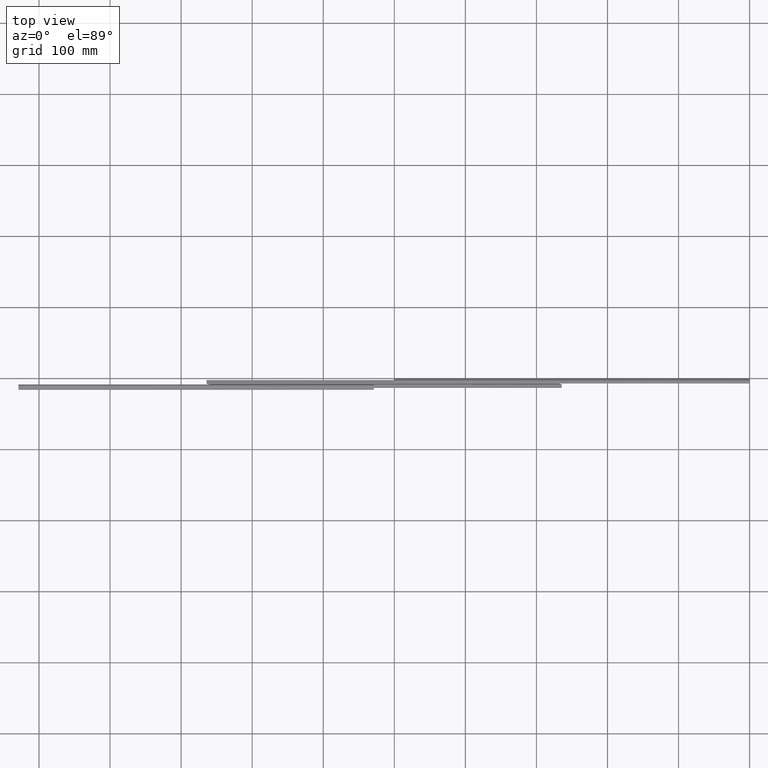
[diagram: clean part render]
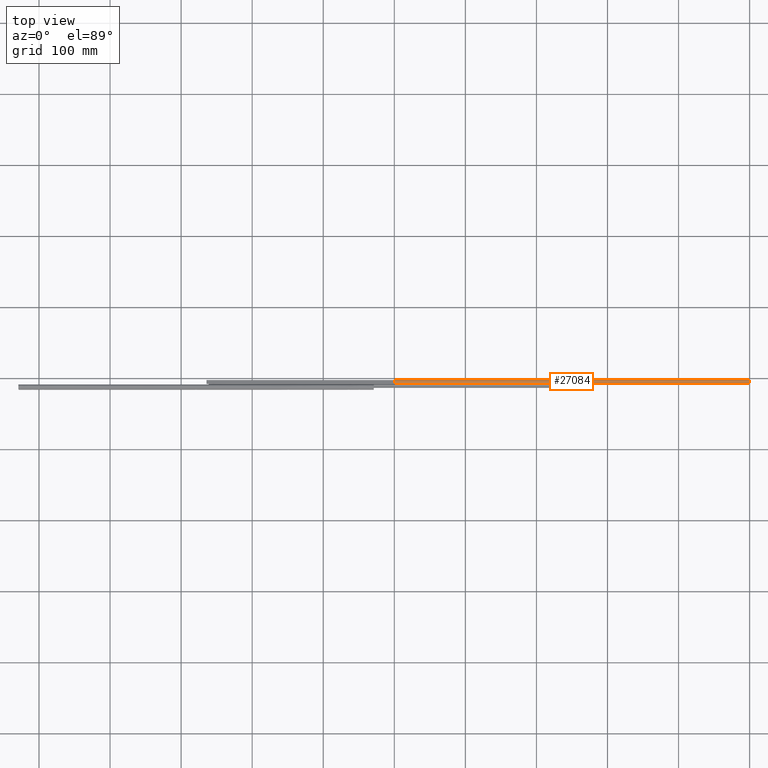
[diagram: same view with one face highlighted and labeled with its STEP entity id]
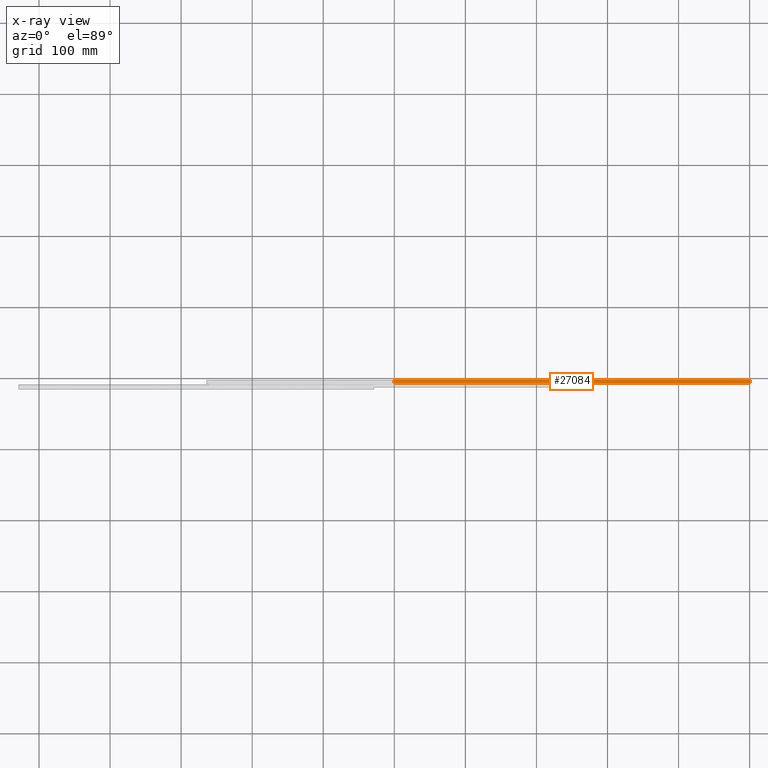
[diagram: x-ray of the same camera — body ghosted, the highlighted face saturated]
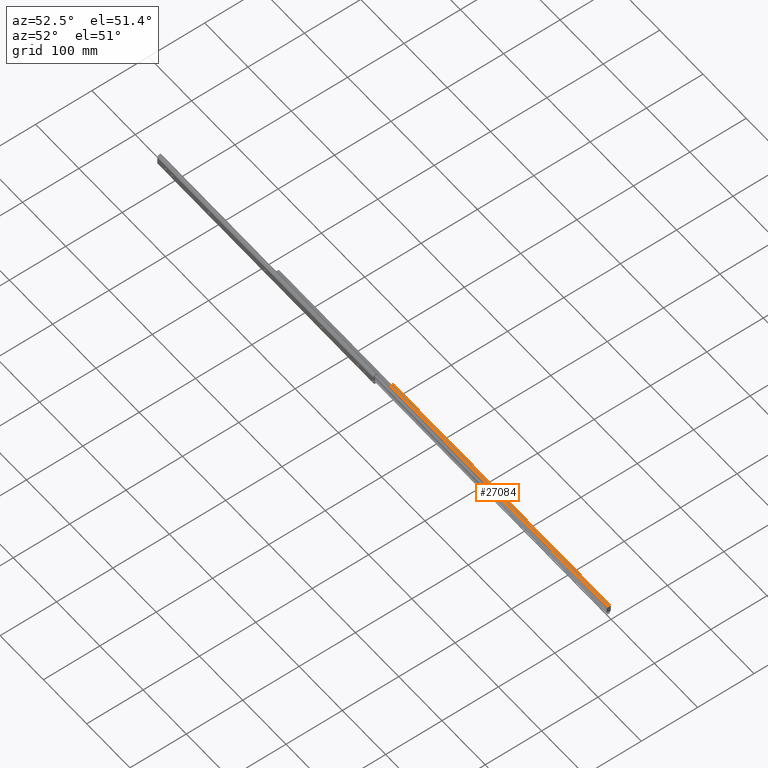
[diagram: same view with one face highlighted and labeled with its STEP entity id]
A machine part, top view. The second image highlights one B-rep face of the part: STEP entity #27084.
The next image is the same camera in x-ray: the body ghosted, the highlighted face saturated — about 0% of this face is hidden behind the body in this view.
A second angle (auxiliary view) of the same face is appended — the face is thin or edge-on in the first view.
In plain terms, the highlighted face is a freeform B-spline surface patch.
Its self-contained STEP definition (entity closure, byte-faithful):
#25201=CARTESIAN_POINT('',(500.0,-6.945557355833350,8.728427000000000));
#25202=VERTEX_POINT('',#25201);
#25208=CARTESIAN_POINT('',(499.978470017581000,-7.078071239486509,8.522037986978859));
#25209=VERTEX_POINT('',#25208);
#25210=CARTESIAN_POINT('',(500.0,-6.945557355833300,8.728427000000000));
#25211=CARTESIAN_POINT('',(500.0,-6.992917200193229,8.660929247621526));
#25212=CARTESIAN_POINT('',(499.993242560337420,-7.037063546604345,8.592073159680135));
#25213=CARTESIAN_POINT('',(499.978470017581000,-7.078071239486509,8.522037986978859));
#25214=QUASI_UNIFORM_CURVE('',3,(#25210,#25211,#25212,#25213),.UNSPECIFIED.,.F.,.U.);
#25215=EDGE_CURVE('',#25202,#25209,#25214,.T.);
#25697=CARTESIAN_POINT('',(0.0,-7.078071239486619,8.522037986978919));
#25698=VERTEX_POINT('',#25697);
#25704=CARTESIAN_POINT('',(0.0,-2.466980046918095,9.201560556579119));
#25705=VERTEX_POINT('',#25704);
#25706=CARTESIAN_POINT('',(0.0,-2.466980046918096,9.201560556579119));
#25707=CARTESIAN_POINT('',(0.0,-3.517366435705751,10.177073308125911));
#25708=CARTESIAN_POINT('',(0.0,-4.935554769061140,9.968079180659549));
#25709=CARTESIAN_POINT('',(0.0,-6.353743102416530,9.759085053193189));
#25710=CARTESIAN_POINT('',(0.0,-7.078071239486623,8.522037986978921));
#25718=(BOUNDED_CURVE()B_SPLINE_CURVE(2,(#25706,#25707,#25708,#25709,#25710),.UNSPECIFIED.,.F.,.U.)B_SPLINE_CURVE_WITH_KNOTS((3,2,3),(0.0,0.500000000000000,1.0),.UNSPECIFIED.)CURVE()GEOMETRIC_REPRESENTATION_ITEM()RATIONAL_B_SPLINE_CURVE((1.0,0.901581321800918,1.0,0.901581321800918,1.0))REPRESENTATION_ITEM(''));
#25719=EDGE_CURVE('',#25705,#25698,#25718,.T.);
#26973=CARTESIAN_POINT('',(500.0,-2.466980046918005,9.201560556579020));
#26974=VERTEX_POINT('',#26973);
#26975=CARTESIAN_POINT('',(500.0,-2.466980046918005,9.201560556579020));
#26976=CARTESIAN_POINT('',(500.0,-3.462608644127085,10.126218761168957));
#26977=CARTESIAN_POINT('',(500.0,-4.813864011567887,9.983467120693515));
#26978=CARTESIAN_POINT('',(500.0,-6.165119379008688,9.840715480218075));
#26979=CARTESIAN_POINT('',(500.0,-6.945557355833357,8.728427000000005));
#26987=(BOUNDED_CURVE()B_SPLINE_CURVE(2,(#26975,#26976,#26977,#26978,#26979),.UNSPECIFIED.,.F.,.U.)B_SPLINE_CURVE_WITH_KNOTS((3,2,3),(0.0,0.500000000000000,1.0),.UNSPECIFIED.)CURVE()GEOMETRIC_REPRESENTATION_ITEM()RATIONAL_B_SPLINE_CURVE((1.0,0.910272297567768,1.0,0.910272297567768,1.0))REPRESENTATION_ITEM(''));
#26988=EDGE_CURVE('',#26974,#25202,#26987,.T.);
#27051=CARTESIAN_POINT('',(500.0,-2.466980046918005,9.201560556579020));
#27052=CARTESIAN_POINT('',(0.0,-2.466980046918095,9.201560556579119));
#27053=QUASI_UNIFORM_CURVE('',1,(#27051,#27052),.UNSPECIFIED.,.F.,.U.);
#27054=EDGE_CURVE('',#26974,#25705,#27053,.T.);
#27059=CARTESIAN_POINT('',(512.500000000000000,-2.393046872449931,9.130495459935300));
#27060=CARTESIAN_POINT('',(-12.812500000000000,-2.393046872449931,9.130495459935300));
#27061=CARTESIAN_POINT('',(512.499999999999890,-5.358479045898496,12.080467124452287));
#27062=CARTESIAN_POINT('',(-12.812500000000000,-5.358479045898496,12.080467124452287));
#27063=CARTESIAN_POINT('',(512.500000000000110,-7.186944746307169,8.318441874775456));
#27064=CARTESIAN_POINT('',(-12.812500000000004,-7.186944746307169,8.318441874775456));
#27072=(BOUNDED_SURFACE()B_SPLINE_SURFACE(1,2,((#27059,#27061,#27063),(#27060,#27062,#27064)),.UNSPECIFIED.,.F.,.F.,.U.)B_SPLINE_SURFACE_WITH_KNOTS((2,2),(3,3),(0.0,525.312500000000110),(0.0,6.149971177053697),.UNSPECIFIED.)GEOMETRIC_REPRESENTATION_ITEM()RATIONAL_B_SPLINE_SURFACE(((1.0,0.581021946329816,0.999362504122286),(1.0,0.581021946329816,0.999362504122286)))REPRESENTATION_ITEM('')SURFACE());
#27073=ORIENTED_EDGE('',*,*,#25215,.F.);
#27074=ORIENTED_EDGE('',*,*,#26988,.F.);
#27075=ORIENTED_EDGE('',*,*,#27054,.T.);
#27076=ORIENTED_EDGE('',*,*,#25719,.T.);
#27077=CARTESIAN_POINT('',(499.978470017581000,-7.078071239486509,8.522037986978859));
#27078=CARTESIAN_POINT('',(0.0,-7.078071239486619,8.522037986978919));
#27079=QUASI_UNIFORM_CURVE('',1,(#27077,#27078),.UNSPECIFIED.,.F.,.U.);
#27080=EDGE_CURVE('',#25209,#25698,#27079,.T.);
#27081=ORIENTED_EDGE('',*,*,#27080,.F.);
#27082=EDGE_LOOP('',(#27073,#27074,#27075,#27076,#27081));
#27083=FACE_OUTER_BOUND('',#27082,.T.);
#27084=ADVANCED_FACE('',(#27083),#27072,.T.);